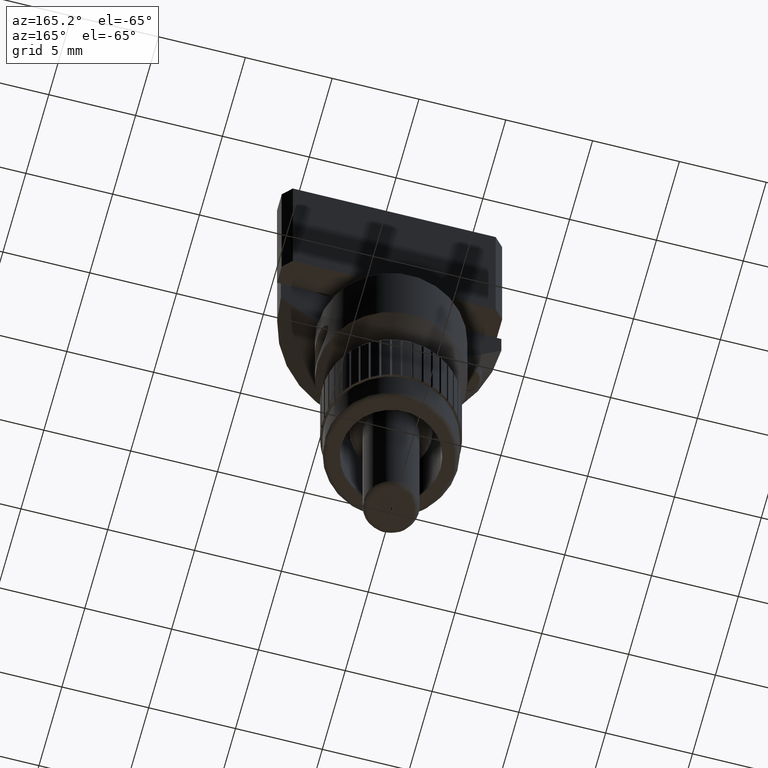
[diagram: clean part render]
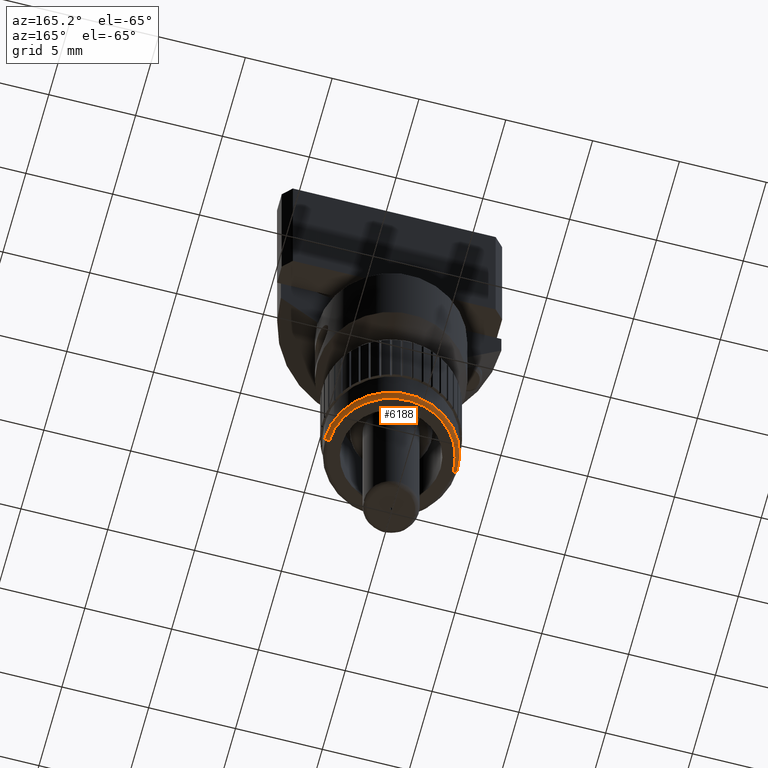
[diagram: same view with one face highlighted and labeled with its STEP entity id]
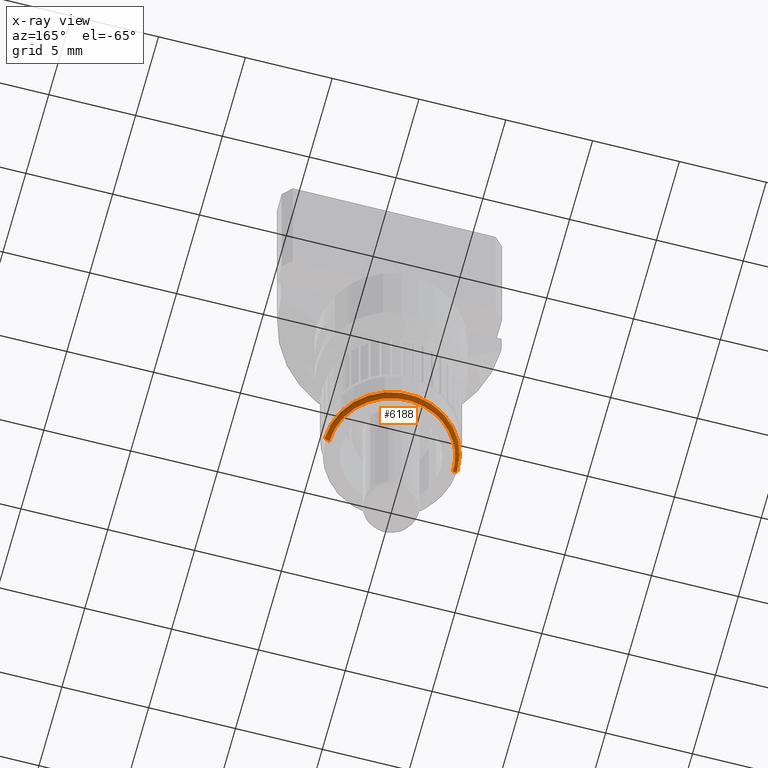
[diagram: x-ray of the same camera — body ghosted, the highlighted face saturated]
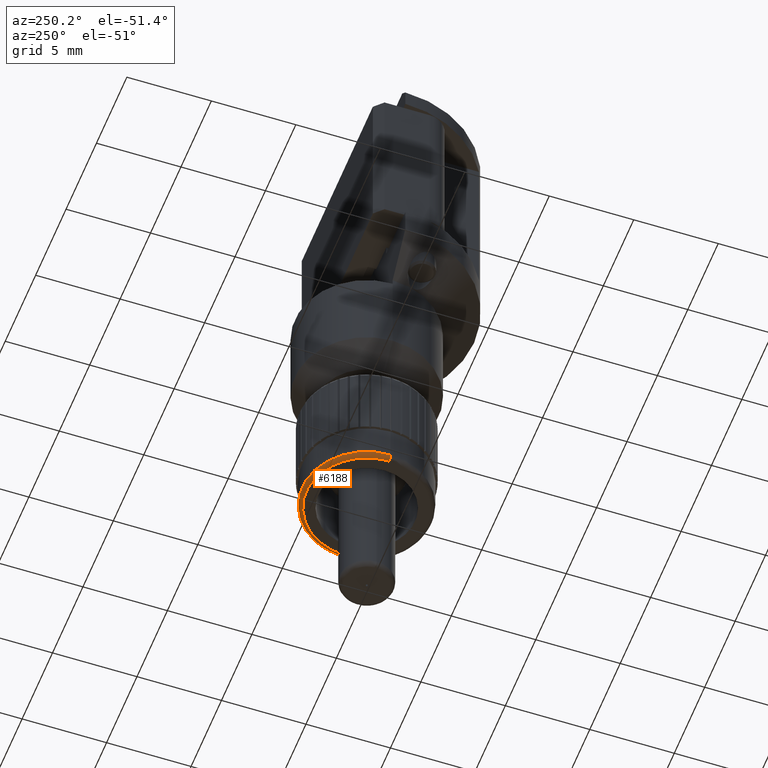
[diagram: same view with one face highlighted and labeled with its STEP entity id]
A machine part, auxiliary view. The second image highlights one B-rep face of the part: STEP entity #6188.
The next image is the same camera in x-ray: the body ghosted, the highlighted face saturated — about 0% of this face is hidden behind the body in this view.
A second angle (auxiliary view) of the same face is appended — the face is thin or edge-on in the first view.
In plain terms, the highlighted face is a freeform B-spline surface patch.
Its self-contained STEP definition (entity closure, byte-faithful):
#200 = AXIS2_PLACEMENT_3D ( 'NONE', #4220, #2674, #1987 ) ;
#420 = CARTESIAN_POINT ( 'NONE',  ( -0.1534079371362846400, 0.2995283873418166900, -0.4298578643762701000 ) ) ;
#607 = CARTESIAN_POINT ( 'NONE',  ( 0.1404934113098985600, 0.001360653706007641800, -0.4240000000000007100 ) ) ;
#749 =( BOUNDED_CURVE ( )  B_SPLINE_CURVE ( 3, ( #2110, #4313, #5908, #8902 ),
 .UNSPECIFIED., .F., .F. ) 
 B_SPLINE_CURVE_WITH_KNOTS ( ( 4, 4 ),
 ( 0.7500000000000000000, 1.250000000000000000 ),
 .UNSPECIFIED. ) 
 CURVE ( )  GEOMETRIC_REPRESENTATION_ITEM ( )  RATIONAL_B_SPLINE_CURVE ( ( 1.000000000000000000, 0.3333333333333333700, 0.3333333333333333700, 1.000000000000000000 ) ) 
 REPRESENTATION_ITEM ( '' )  );
#851 = CARTESIAN_POINT ( 'NONE',  ( 0.1404934113098982000, 0.001360653706007696200, -0.4340000000000002700 ) ) ;
#1051 = ORIENTED_EDGE ( 'NONE', *, *, #2050, .T. ) ;
#1062 = CIRCLE ( 'NONE', #200, 0.1504999999999999400 ) ;
#1174 = CARTESIAN_POINT ( 'NONE',  ( 0.1504929423639840600, 0.001457497386150714400, -0.4240000000000007100 ) ) ;
#1307 = DIRECTION ( 'NONE',  ( 0.9999531054085306600, 0.009684368014290348900, 0.0000000000000000000 ) ) ;
#1332 = CARTESIAN_POINT ( 'NONE',  ( 0.1404934113098978700, 0.001360653706007634800, -0.4340000000000007700 ) ) ;
#1763 = DIRECTION ( 'NONE',  ( 0.009684368014290218800, -0.9999531054085306600, 1.117715401769352600E-032 ) ) ;
#1817 = ORIENTED_EDGE ( 'NONE', *, *, #9104, .T. ) ;
#1944 = CARTESIAN_POINT ( 'NONE',  ( -0.1404934113098978400, -0.001360653706007721800, -0.4340000000000002700 ) ) ;
#1964 = EDGE_CURVE ( 'NONE', #8169, #9845, #9163, .T. ) ;
#1987 = DIRECTION ( 'NONE',  ( 0.9999531054085304400, 0.009684368014290340200, 0.0000000000000000000 ) ) ;
#2050 = EDGE_CURVE ( 'NONE', #8169, #9481, #1062, .T. ) ;
#2096 = CARTESIAN_POINT ( 'NONE',  ( 0.1475779475916827700, 0.3024433821141178600, -0.4240000000000007700 ) ) ;
#2110 = CARTESIAN_POINT ( 'NONE',  ( 0.1404934113098982000, 0.001360653706007696200, -0.4340000000000002700 ) ) ;
#2674 = DIRECTION ( 'NONE',  ( -9.957929959322615300E-017, -9.644078093763045500E-019, -1.000000000000000000 ) ) ;
#3261 = CARTESIAN_POINT ( 'NONE',  ( -0.1404934113098980100, -0.001360653706007624600, -0.4240000000000007100 ) ) ;
#3473 = CARTESIAN_POINT ( 'NONE',  ( 0.1463510009840104400, 0.001417383420405228800, -0.4340000000000011600 ) ) ;
#3507 = CARTESIAN_POINT ( 'NONE',  ( -0.1404934113098973100, -0.001360653706007742100, -0.4340000000000007700 ) ) ;
#3669 = EDGE_CURVE ( 'NONE', #9481, #6979, #4209, .T. ) ;
#3808 = ORIENTED_EDGE ( 'NONE', *, *, #3669, .T. ) ;
#4209 = CIRCLE ( 'NONE', #9397, 0.009999999999999996700 ) ;
#4220 = CARTESIAN_POINT ( 'NONE',  ( 2.731847993664263200E-016, 0.0000000000000000000, -0.4240000000000007100 ) ) ;
#4313 = CARTESIAN_POINT ( 'NONE',  ( 0.1377721038978826400, 0.2823474763258028200, -0.4340000000000007700 ) ) ;
#4823 = DIRECTION ( 'NONE',  ( -0.009684368014290342000, 0.9999531054085306600, 6.760340247557712000E-036 ) ) ;
#5078 = CARTESIAN_POINT ( 'NONE',  ( -0.1504929423639833100, -0.001457497386150660100, -0.4240000000000007100 ) ) ;
#5104 = CARTESIAN_POINT ( 'NONE',  ( 0.1504929423639838300, 0.001457497386150544600, -0.4298578643762699900 ) ) ;
#5762 = CARTESIAN_POINT ( 'NONE',  ( -0.1491857678248205400, 0.2912846185476151700, -0.4340000000000011100 ) ) ;
#5800 = CARTESIAN_POINT ( 'NONE',  ( -0.1463510009840098800, -0.001417383420405340700, -0.4340000000000011600 ) ) ;
#5830 = CARTESIAN_POINT ( 'NONE',  ( 0.1504929423639838600, 0.001457497386150544800, -0.4240000000000007100 ) ) ;
#5908 = CARTESIAN_POINT ( 'NONE',  ( -0.1432147187219125500, 0.2796261689137875500, -0.4340000000000007700 ) ) ;
#5919 = FACE_OUTER_BOUND ( 'NONE', #8299, .T. ) ;
#6188 = ADVANCED_FACE ( 'NONE', ( #5919 ), #9669, .T. ) ;
#6582 = CARTESIAN_POINT ( 'NONE',  ( -0.1504929423639832800, -0.001457497386150659900, -0.4298578643762699900 ) ) ;
#6644 = CARTESIAN_POINT ( 'NONE',  ( -0.1432147187219128000, 0.2796261689137876100, -0.4340000000000007200 ) ) ;
#6979 = VERTEX_POINT ( 'NONE', #851 ) ;
#7940 = DIRECTION ( 'NONE',  ( -0.9999531054085306600, -0.009684368014290215300, 0.0000000000000000000 ) ) ;
#8055 = CARTESIAN_POINT ( 'NONE',  ( 0.1475779475916827700, 0.3024433821141179200, -0.4298578643762701000 ) ) ;
#8169 = VERTEX_POINT ( 'NONE', #9015 ) ;
#8299 = EDGE_LOOP ( 'NONE', ( #9551, #1051, #3808, #1817 ) ) ;
#8817 = CARTESIAN_POINT ( 'NONE',  ( 0.1377721038978826100, 0.2823474763258029800, -0.4340000000000007200 ) ) ;
#8850 = CARTESIAN_POINT ( 'NONE',  ( -0.1534079371362846400, 0.2995283873418166900, -0.4240000000000007700 ) ) ;
#8902 = CARTESIAN_POINT ( 'NONE',  ( -0.1404934113098978400, -0.001360653706007721800, -0.4340000000000002700 ) ) ;
#9015 = CARTESIAN_POINT ( 'NONE',  ( -0.1504929423639835300, -0.001457497386150695900, -0.4240000000000007100 ) ) ;
#9104 = EDGE_CURVE ( 'NONE', #6979, #9845, #749, .T. ) ;
#9163 = CIRCLE ( 'NONE', #9577, 0.009999999999999996700 ) ;
#9397 = AXIS2_PLACEMENT_3D ( 'NONE', #607, #4823, #1307 ) ;
#9481 = VERTEX_POINT ( 'NONE', #1174 ) ;
#9543 = CARTESIAN_POINT ( 'NONE',  ( 0.1435162341431999700, 0.2941193853884256900, -0.4340000000000011100 ) ) ;
#9551 = ORIENTED_EDGE ( 'NONE', *, *, #1964, .F. ) ;
#9577 = AXIS2_PLACEMENT_3D ( 'NONE', #3261, #1763, #7940 ) ;
#9669 =( BOUNDED_SURFACE ( )  B_SPLINE_SURFACE ( 3, 3, ( 
 ( #5830, #2096, #8850, #5078 ),
 ( #5104, #8055, #420, #6582 ),
 ( #3473, #9543, #5762, #5800 ),
 ( #1332, #8817, #6644, #3507 ) ),
 .UNSPECIFIED., .F., .F., .T. ) 
 B_SPLINE_SURFACE_WITH_KNOTS ( ( 4, 4 ),
 ( 4, 4 ),
 ( 0.0000000000000000000, 1.000000000000000000 ),
 ( 0.0000000000000000000, 1.000000000000000000 ),
 .UNSPECIFIED. ) 
 GEOMETRIC_REPRESENTATION_ITEM ( )  RATIONAL_B_SPLINE_SURFACE ( (
 ( 1.000000000000000000, 0.3333333333333330900, 0.3333333333333330900, 1.000000000000000000),
 ( 0.8047378541243489500, 0.2682459513747828000, 0.2682459513747828000, 0.8047378541243489500),
 ( 0.8047378541243489500, 0.2682459513747828000, 0.2682459513747828000, 0.8047378541243489500),
 ( 1.000000000000000000, 0.3333333333333330900, 0.3333333333333330900, 1.000000000000000000) ) ) 
 REPRESENTATION_ITEM ( '' )  SURFACE ( )  );
#9845 = VERTEX_POINT ( 'NONE', #1944 ) ;